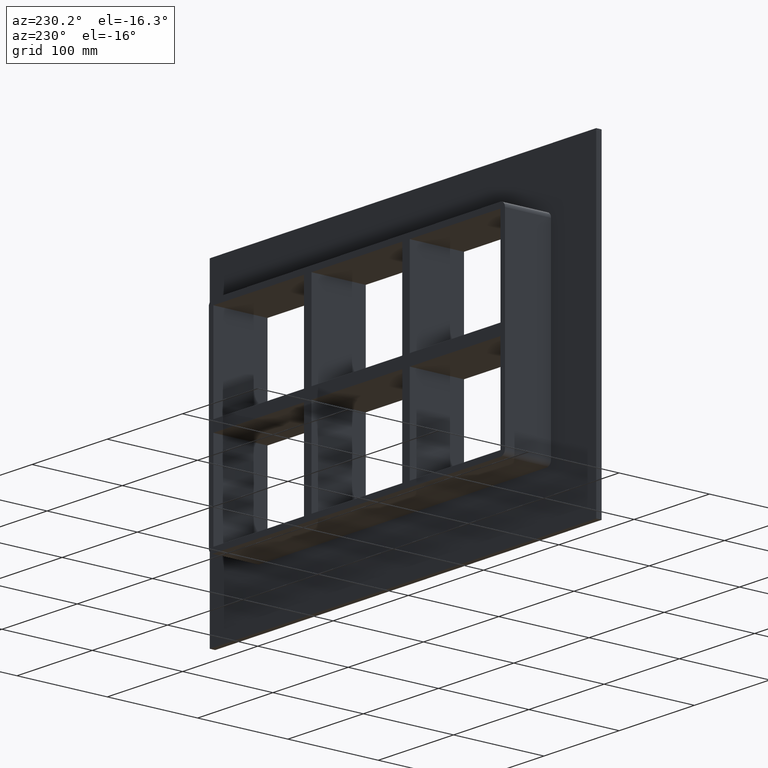
[diagram: clean part render]
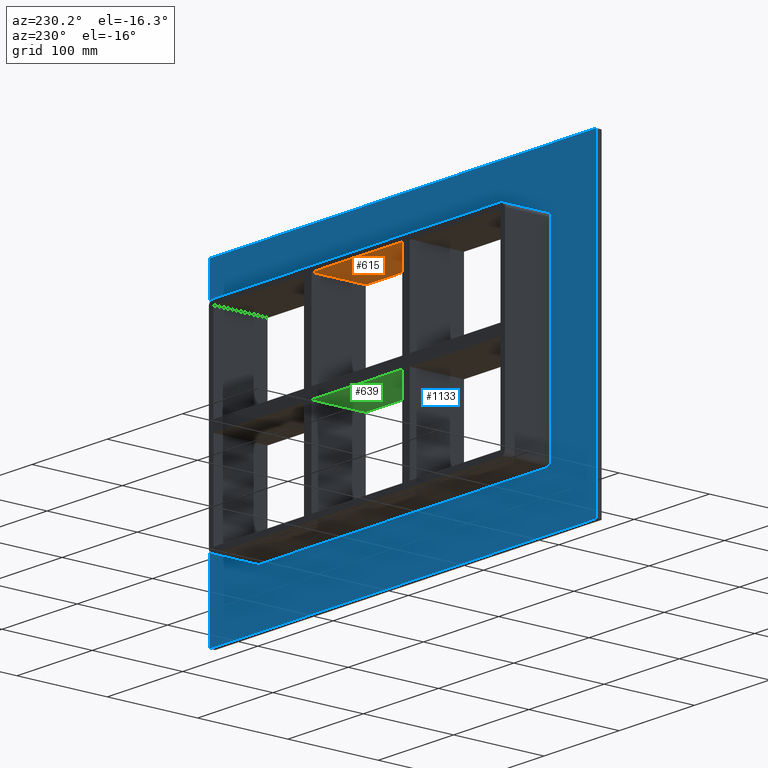
[diagram: same view with three faces highlighted in distinct colors, each labeled with its STEP entity id]
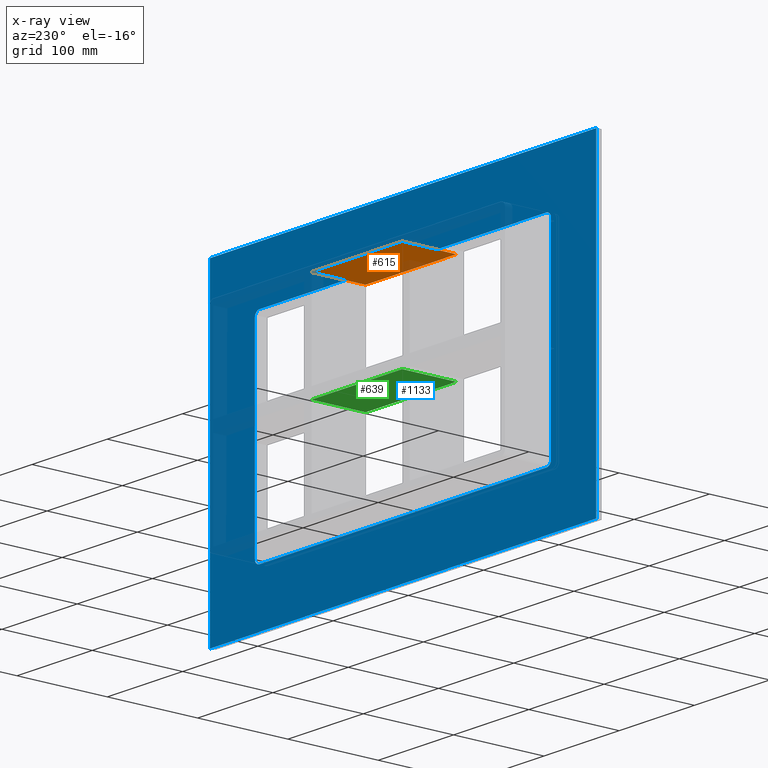
[diagram: x-ray of the same camera — body ghosted, the three highlighted faces saturated]
A machine part, auxiliary view with three faces highlighted in distinct colors.
The next image is the same camera in x-ray (body ghosted, the three faces saturated) — at least one of them is partly hidden behind the body in this view.
Their STEP definitions:

[orange] entity #615 — the highlighted planar face has unit normal (0, 0, 1).
#83=CARTESIAN_POINT('',(60.249999999998636,-3.0,107.00000000000003));
#84=VERTEX_POINT('',#83);
#91=CARTESIAN_POINT('',(60.249999999998636,57.0,107.00000000000003));
#92=VERTEX_POINT('',#91);
#93=CARTESIAN_POINT('',(60.249999999998636,57.000000000000007,107.00000000000003));
#94=DIRECTION('',(0.0,-1.0,0.0));
#95=VECTOR('',#94,60.000000000000007);
#96=LINE('',#93,#95);
#97=EDGE_CURVE('',#92,#84,#96,.T.);
#391=CARTESIAN_POINT('',(-60.249999999996362,-3.0,107.00000000000003));
#392=VERTEX_POINT('',#391);
#399=CARTESIAN_POINT('',(-60.249999999996362,-3.0,107.00000000000003));
#400=DIRECTION('',(1.0,0.0,0.0));
#401=VECTOR('',#400,120.49999999999498);
#402=LINE('',#399,#401);
#403=EDGE_CURVE('',#392,#84,#402,.T.);
#592=CARTESIAN_POINT('',(-190.75000000000003,0.0,107.00000000000003));
#593=DIRECTION('',(0.0,0.0,1.0));
#594=DIRECTION('',(1.0,0.0,0.0));
#595=AXIS2_PLACEMENT_3D('',#592,#593,#594);
#596=PLANE('',#595);
#597=ORIENTED_EDGE('',*,*,#97,.T.);
#598=ORIENTED_EDGE('',*,*,#403,.F.);
#599=CARTESIAN_POINT('',(-60.249999999996362,57.0,107.00000000000003));
#600=VERTEX_POINT('',#599);
#601=CARTESIAN_POINT('',(-60.249999999996362,-3.0,107.00000000000003));
#602=DIRECTION('',(0.0,1.0,0.0));
#603=VECTOR('',#602,60.000000000000007);
#604=LINE('',#601,#603);
#605=EDGE_CURVE('',#392,#600,#604,.T.);
#606=ORIENTED_EDGE('',*,*,#605,.T.);
#607=CARTESIAN_POINT('',(60.249999999998622,57.0,107.00000000000003));
#608=DIRECTION('',(-1.0,0.0,0.0));
#609=VECTOR('',#608,120.49999999999498);
#610=LINE('',#607,#609);
#611=EDGE_CURVE('',#92,#600,#610,.T.);
#612=ORIENTED_EDGE('',*,*,#611,.F.);
#613=EDGE_LOOP('',(#597,#598,#606,#612));
#614=FACE_OUTER_BOUND('',#613,.T.);
#615=ADVANCED_FACE('',(#614),#596,.F.);

[blue] entity #1133 — the highlighted planar face has unit normal (0, 1, 0).
#1024=CARTESIAN_POINT('',(1.984063E-014,6.000000000000001,1.707121E-014));
#1025=DIRECTION('',(0.0,1.0,0.0));
#1026=DIRECTION('',(0.0,0.0,1.0));
#1027=AXIS2_PLACEMENT_3D('',#1024,#1025,#1026);
#1028=PLANE('',#1027);
#1029=CARTESIAN_POINT('',(-256.75000000000006,6.000000000000001,173.00000000000006));
#1030=VERTEX_POINT('',#1029);
#1031=CARTESIAN_POINT('',(256.75000000000006,6.000000000000001,173.00000000000006));
#1032=VERTEX_POINT('',#1031);
#1033=CARTESIAN_POINT('',(-256.75000000000006,6.000000000000001,173.00000000000006));
#1034=DIRECTION('',(1.0,0.0,0.0));
#1035=VECTOR('',#1034,513.50000000000011);
#1036=LINE('',#1033,#1035);
#1037=EDGE_CURVE('',#1030,#1032,#1036,.T.);
#1038=ORIENTED_EDGE('',*,*,#1037,.T.);
#1039=CARTESIAN_POINT('',(256.75000000000006,6.000000000000001,-173.00000000000006));
#1040=VERTEX_POINT('',#1039);
#1041=CARTESIAN_POINT('',(256.75000000000006,6.000000000000001,173.00000000000006));
#1042=DIRECTION('',(0.0,0.0,-1.0));
#1043=VECTOR('',#1042,346.00000000000011);
#1044=LINE('',#1041,#1043);
#1045=EDGE_CURVE('',#1032,#1040,#1044,.T.);
#1046=ORIENTED_EDGE('',*,*,#1045,.T.);
#1047=CARTESIAN_POINT('',(-256.75000000000006,6.000000000000001,-173.00000000000006));
#1048=VERTEX_POINT('',#1047);
#1049=CARTESIAN_POINT('',(256.75000000000006,6.000000000000001,-173.0));
#1050=DIRECTION('',(-1.0,0.0,0.0));
#1051=VECTOR('',#1050,513.50000000000011);
#1052=LINE('',#1049,#1051);
#1053=EDGE_CURVE('',#1040,#1048,#1052,.T.);
#1054=ORIENTED_EDGE('',*,*,#1053,.T.);
#1055=CARTESIAN_POINT('',(-256.75000000000006,6.000000000000001,-173.0));
#1056=DIRECTION('',(0.0,0.0,1.0));
#1057=VECTOR('',#1056,346.00000000000011);
#1058=LINE('',#1055,#1057);
#1059=EDGE_CURVE('',#1048,#1030,#1058,.T.);
#1060=ORIENTED_EDGE('',*,*,#1059,.T.);
#1061=EDGE_LOOP('',(#1038,#1046,#1054,#1060));
#1062=FACE_OUTER_BOUND('',#1061,.T.);
#1063=CARTESIAN_POINT('',(-190.75000000000003,6.000000000000001,-113.0));
#1064=VERTEX_POINT('',#1063);
#1065=CARTESIAN_POINT('',(-196.75000000000006,6.000000000000001,-107.0));
#1066=VERTEX_POINT('',#1065);
#1067=CARTESIAN_POINT('',(-190.75000000000003,6.000000000000001,-107.0));
#1068=DIRECTION('',(0.0,1.0,0.0));
#1069=DIRECTION('',(-0.707106781186548,0.0,-0.707106781186548));
#1070=AXIS2_PLACEMENT_3D('',#1067,#1068,#1069);
#1071=CIRCLE('',#1070,6.000000000000002);
#1072=EDGE_CURVE('',#1064,#1066,#1071,.T.);
#1073=ORIENTED_EDGE('',*,*,#1072,.F.);
#1074=CARTESIAN_POINT('',(190.75000000000003,6.000000000000001,-113.0));
#1075=VERTEX_POINT('',#1074);
#1076=CARTESIAN_POINT('',(190.75000000000003,6.000000000000001,-113.0));
#1077=DIRECTION('',(-1.0,0.0,0.0));
#1078=VECTOR('',#1077,381.50000000000011);
#1079=LINE('',#1076,#1078);
#1080=EDGE_CURVE('',#1075,#1064,#1079,.T.);
#1081=ORIENTED_EDGE('',*,*,#1080,.F.);
#1082=CARTESIAN_POINT('',(196.75000000000006,6.000000000000001,-107.0));
#1083=VERTEX_POINT('',#1082);
#1084=CARTESIAN_POINT('',(190.75000000000003,6.000000000000001,-107.0));
#1085=DIRECTION('',(0.0,1.0,0.0));
#1086=DIRECTION('',(0.707106781186548,0.0,-0.707106781186548));
#1087=AXIS2_PLACEMENT_3D('',#1084,#1085,#1086);
#1088=CIRCLE('',#1087,6.000000000000002);
#1089=EDGE_CURVE('',#1083,#1075,#1088,.T.);
#1090=ORIENTED_EDGE('',*,*,#1089,.F.);
#1091=CARTESIAN_POINT('',(196.75000000000006,6.000000000000001,107.00000000000001));
#1092=VERTEX_POINT('',#1091);
#1093=CARTESIAN_POINT('',(196.75000000000006,6.000000000000001,107.00000000000001));
#1094=DIRECTION('',(0.0,0.0,-1.0));
#1095=VECTOR('',#1094,214.0);
#1096=LINE('',#1093,#1095);
#1097=EDGE_CURVE('',#1092,#1083,#1096,.T.);
#1098=ORIENTED_EDGE('',*,*,#1097,.F.);
#1099=CARTESIAN_POINT('',(190.75000000000003,6.000000000000001,113.0));
#1100=VERTEX_POINT('',#1099);
#1101=CARTESIAN_POINT('',(190.75000000000003,6.000000000000001,107.00000000000001));
#1102=DIRECTION('',(0.0,1.0,0.0));
#1103=DIRECTION('',(0.70710678118655,0.0,0.707106781186545));
#1104=AXIS2_PLACEMENT_3D('',#1101,#1102,#1103);
#1105=CIRCLE('',#1104,6.000000000000001);
#1106=EDGE_CURVE('',#1100,#1092,#1105,.T.);
#1107=ORIENTED_EDGE('',*,*,#1106,.F.);
#1108=CARTESIAN_POINT('',(-190.75000000000003,6.000000000000001,113.0));
#1109=VERTEX_POINT('',#1108);
#1110=CARTESIAN_POINT('',(-190.75000000000003,6.000000000000001,113.0));
#1111=DIRECTION('',(1.0,0.0,0.0));
#1112=VECTOR('',#1111,381.5);
#1113=LINE('',#1110,#1112);
#1114=EDGE_CURVE('',#1109,#1100,#1113,.T.);
#1115=ORIENTED_EDGE('',*,*,#1114,.F.);
#1116=CARTESIAN_POINT('',(-196.75000000000006,6.000000000000001,107.0));
#1117=VERTEX_POINT('',#1116);
#1118=CARTESIAN_POINT('',(-190.75000000000003,6.000000000000001,107.0));
#1119=DIRECTION('',(0.0,1.0,0.0));
#1120=DIRECTION('',(-0.707106781186548,0.0,0.707106781186548));
#1121=AXIS2_PLACEMENT_3D('',#1118,#1119,#1120);
#1122=CIRCLE('',#1121,6.000000000000002);
#1123=EDGE_CURVE('',#1117,#1109,#1122,.T.);
#1124=ORIENTED_EDGE('',*,*,#1123,.F.);
#1125=CARTESIAN_POINT('',(-196.75000000000006,6.000000000000001,-107.0));
#1126=DIRECTION('',(0.0,0.0,1.0));
#1127=VECTOR('',#1126,213.99999999999997);
#1128=LINE('',#1125,#1127);
#1129=EDGE_CURVE('',#1066,#1117,#1128,.T.);
#1130=ORIENTED_EDGE('',*,*,#1129,.F.);
#1131=EDGE_LOOP('',(#1073,#1081,#1090,#1098,#1107,#1115,#1124,#1130));
#1132=FACE_BOUND('',#1131,.T.);
#1133=ADVANCED_FACE('',(#1062,#1132),#1028,.T.);

[green] entity #639 — the highlighted planar face has unit normal (0, 0, -1).
#113=CARTESIAN_POINT('',(60.24999999999865,57.0,-6.000000000009269));
#114=VERTEX_POINT('',#113);
#115=CARTESIAN_POINT('',(60.24999999999865,-3.0,-6.000000000009269));
#116=VERTEX_POINT('',#115);
#117=CARTESIAN_POINT('',(60.24999999999865,57.0,-6.00000000000926));
#118=DIRECTION('',(0.0,-1.0,0.0));
#119=VECTOR('',#118,60.0);
#120=LINE('',#117,#119);
#121=EDGE_CURVE('',#114,#116,#120,.T.);
#366=CARTESIAN_POINT('',(-60.249999999996362,-3.0,-6.000000000009292));
#367=VERTEX_POINT('',#366);
#374=CARTESIAN_POINT('',(60.249999999998664,-3.0,-6.000000000009264));
#375=DIRECTION('',(-1.0,0.0,0.0));
#376=VECTOR('',#375,120.49999999999503);
#377=LINE('',#374,#376);
#378=EDGE_CURVE('',#116,#367,#377,.T.);
#616=CARTESIAN_POINT('',(190.74999999999818,-3.0,-6.000000000009234));
#617=DIRECTION('',(0.0,0.0,-1.0));
#618=DIRECTION('',(-1.0,0.0,0.0));
#619=AXIS2_PLACEMENT_3D('',#616,#617,#618);
#620=PLANE('',#619);
#621=ORIENTED_EDGE('',*,*,#121,.T.);
#622=ORIENTED_EDGE('',*,*,#378,.T.);
#623=CARTESIAN_POINT('',(-60.249999999996362,57.0,-6.000000000009292));
#624=VERTEX_POINT('',#623);
#625=CARTESIAN_POINT('',(-60.249999999996355,57.0,-6.000000000009289));
#626=DIRECTION('',(0.0,-1.0,0.0));
#627=VECTOR('',#626,60.0);
#628=LINE('',#625,#627);
#629=EDGE_CURVE('',#624,#367,#628,.T.);
#630=ORIENTED_EDGE('',*,*,#629,.F.);
#631=CARTESIAN_POINT('',(60.249999999998664,57.0,-6.000000000009264));
#632=DIRECTION('',(-1.0,0.0,0.0));
#633=VECTOR('',#632,120.49999999999503);
#634=LINE('',#631,#633);
#635=EDGE_CURVE('',#114,#624,#634,.T.);
#636=ORIENTED_EDGE('',*,*,#635,.F.);
#637=EDGE_LOOP('',(#621,#622,#630,#636));
#638=FACE_OUTER_BOUND('',#637,.T.);
#639=ADVANCED_FACE('',(#638),#620,.T.);